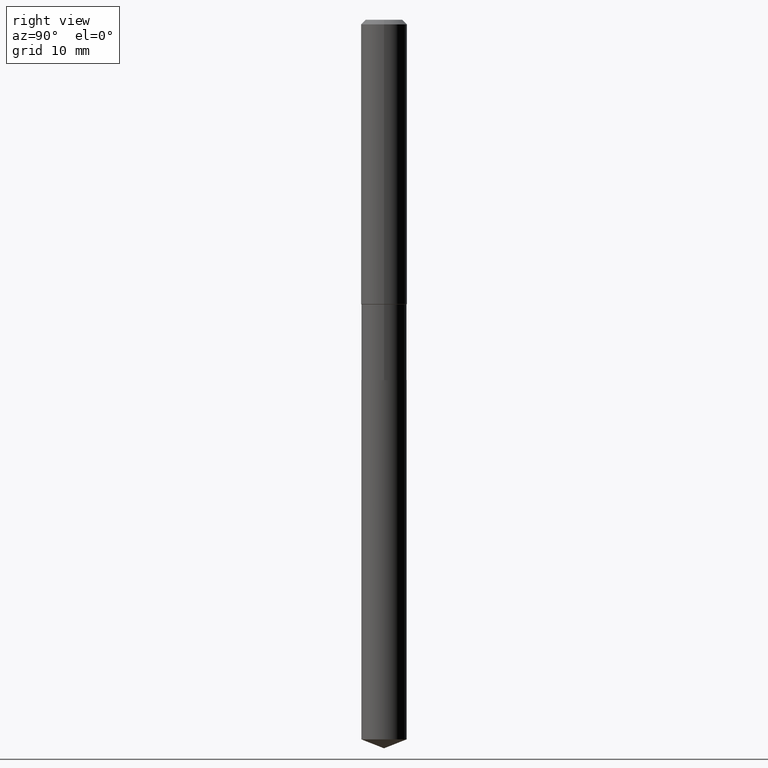
[diagram: clean part render]
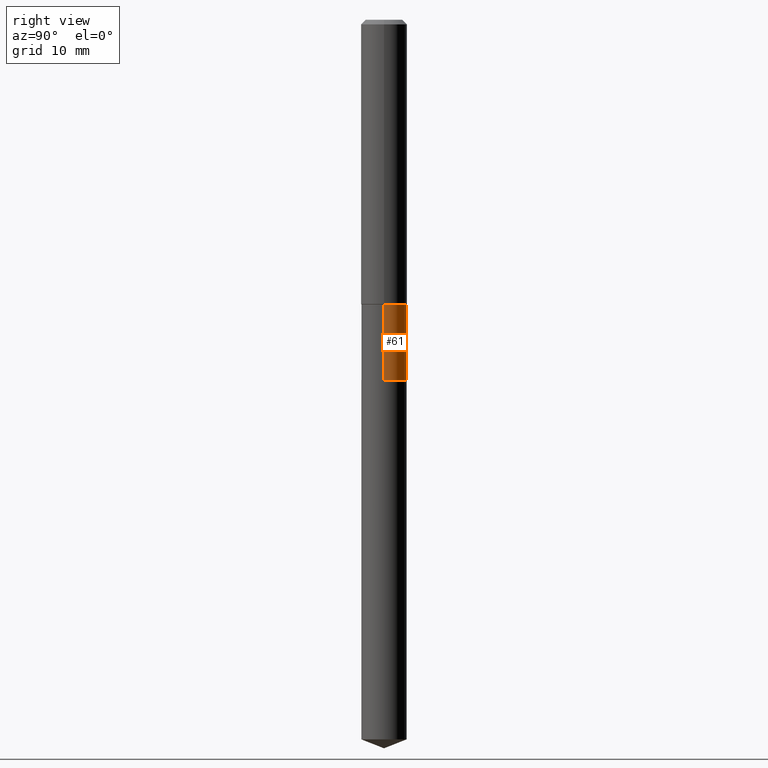
[diagram: same view with one face highlighted and labeled with its STEP entity id]
A machine part, right view. The second image highlights one B-rep face of the part: STEP entity #61.
In plain terms, the highlighted cylindrical surface (edge-blend (fillet) strip) has radius 2.9502 mm, axis along (-0, 0, 1).
Its self-contained STEP definition (entity closure, byte-faithful):
#5 = CYLINDRICAL_SURFACE ( 'NONE', #376, 0.1161499999999999755 ) ;
#25 = VERTEX_POINT ( 'NONE', #44 ) ;
#41 = EDGE_CURVE ( 'NONE', #59, #25, #449, .T. ) ;
#44 = CARTESIAN_POINT ( 'NONE',  ( -0.1161499999999999477, -4.955201117003356773E-15, -1.461300000000000043 ) ) ;
#50 = FACE_OUTER_BOUND ( 'NONE', #365, .T. ) ;
#59 = VERTEX_POINT ( 'NONE', #160 ) ;
#61 = ADVANCED_FACE ( 'NONE', ( #50 ), #5, .T. ) ;
#68 = ORIENTED_EDGE ( 'NONE', *, *, #350, .F. ) ;
#73 = DIRECTION ( 'NONE',  ( -2.445468806185136597E-29, 3.491481338843145583E-15, 1.000000000000000000 ) ) ;
#86 = CARTESIAN_POINT ( 'NONE',  ( -0.1161499999999999755, 8.252953875853561917E-16, -5.713343107331072131E-30 ) ) ;
#135 = LINE ( 'NONE', #86, #206 ) ;
#140 = AXIS2_PLACEMENT_3D ( 'NONE', #223, #73, #375 ) ;
#145 = EDGE_CURVE ( 'NONE', #366, #25, #135, .T. ) ;
#160 = CARTESIAN_POINT ( 'NONE',  ( 0.1161499999999999477, -5.913172795464748024E-15, -1.461300000000000043 ) ) ;
#171 = LINE ( 'NONE', #400, #358 ) ;
#187 = VERTEX_POINT ( 'NONE', #411 ) ;
#190 = CIRCLE ( 'NONE', #140, 0.1161500000000000032 ) ;
#199 = DIRECTION ( 'NONE',  ( 1.000000000000000000, -6.982962677686269866E-15, 0.000000000000000000 ) ) ;
#206 = VECTOR ( 'NONE', #233, 39.37007874015748143 ) ;
#215 = DIRECTION ( 'NONE',  ( -2.445468806185136597E-29, 3.491481338843145583E-15, 1.000000000000000000 ) ) ;
#223 = CARTESIAN_POINT ( 'NONE',  ( 4.523872744561885153E-29, -6.458891328725936072E-15, -1.849900000000000322 ) ) ;
#233 = DIRECTION ( 'NONE',  ( -2.445468806185136877E-29, 3.491481338843145188E-15, 1.000000000000000000 ) ) ;
#256 = EDGE_CURVE ( 'NONE', #187, #366, #190, .T. ) ;
#258 = ORIENTED_EDGE ( 'NONE', *, *, #41, .F. ) ;
#277 = CARTESIAN_POINT ( 'NONE',  ( 0.000000000000000000, 0.000000000000000000, 0.000000000000000000 ) ) ;
#350 = EDGE_CURVE ( 'NONE', #187, #59, #171, .T. ) ;
#351 = DIRECTION ( 'NONE',  ( -2.445468806185136877E-29, 3.491481338843145188E-15, 1.000000000000000000 ) ) ;
#358 = VECTOR ( 'NONE', #351, 39.37007874015748143 ) ;
#363 = CARTESIAN_POINT ( 'NONE',  ( -0.1161500000000000032, -4.955201117003356773E-15, -1.849900000000000322 ) ) ;
#365 = EDGE_LOOP ( 'NONE', ( #490, #397, #258, #68 ) ) ;
#366 = VERTEX_POINT ( 'NONE', #363 ) ;
#375 = DIRECTION ( 'NONE',  ( 1.000000000000000000, -6.982962677686265922E-15, 0.000000000000000000 ) ) ;
#376 = AXIS2_PLACEMENT_3D ( 'NONE', #277, #462, #424 ) ;
#384 = AXIS2_PLACEMENT_3D ( 'NONE', #410, #215, #199 ) ;
#397 = ORIENTED_EDGE ( 'NONE', *, *, #145, .T. ) ;
#400 = CARTESIAN_POINT ( 'NONE',  ( 0.1161499999999999755, -8.110711150132597459E-16, 5.663679325086977697E-30 ) ) ;
#410 = CARTESIAN_POINT ( 'NONE',  ( 3.573563566478340670E-29, -5.102101680451488278E-15, -1.461300000000000043 ) ) ;
#411 = CARTESIAN_POINT ( 'NONE',  ( 0.1161500000000000032, -7.269962443739196607E-15, -1.849900000000000322 ) ) ;
#424 = DIRECTION ( 'NONE',  ( 1.000000000000000000, -6.982962677686266711E-15, 4.876176775795935232E-29 ) ) ;
#449 = CIRCLE ( 'NONE', #384, 0.1161499999999999477 ) ;
#462 = DIRECTION ( 'NONE',  ( -2.445468806185136597E-29, 3.491481338843145583E-15, 1.000000000000000000 ) ) ;
#490 = ORIENTED_EDGE ( 'NONE', *, *, #256, .T. ) ;